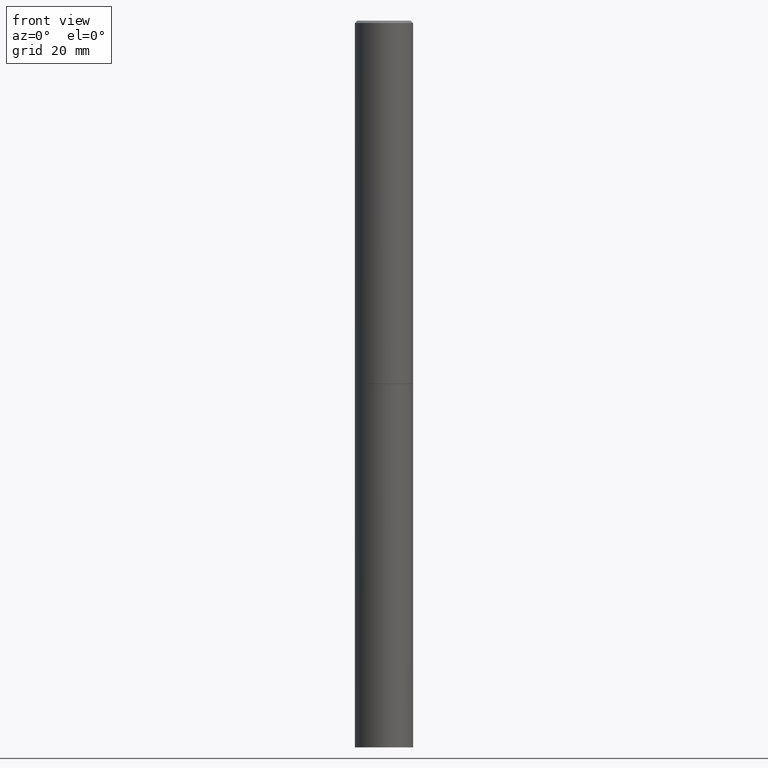
[diagram: clean part render]
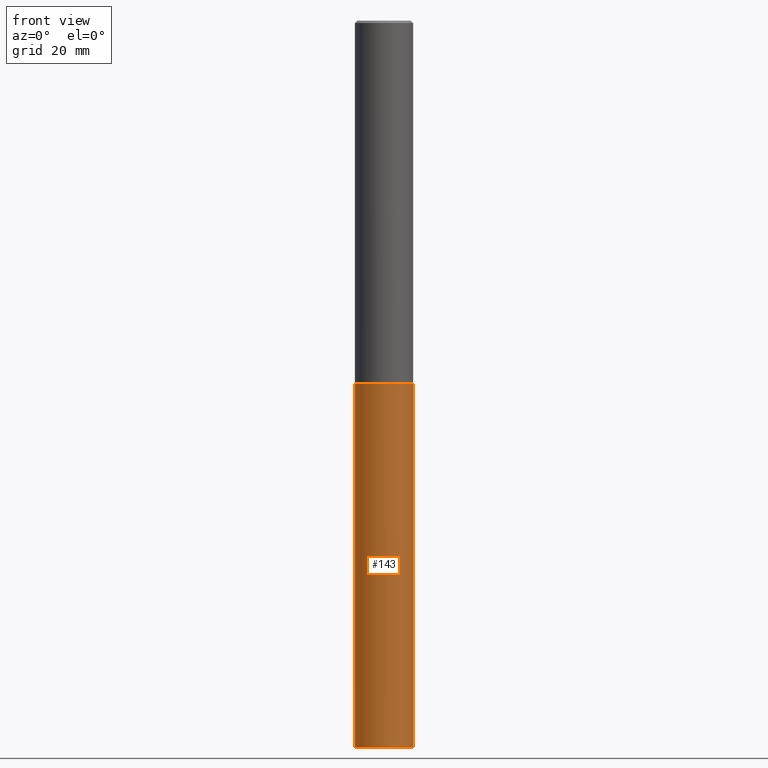
[diagram: same view with one face highlighted and labeled with its STEP entity id]
A machine part, front view. The second image highlights one B-rep face of the part: STEP entity #143.
In plain terms, the highlighted cylindrical surface (edge-blend (fillet) strip) has radius 5.9995 mm, axis along (-0, 0, 1).
Its self-contained STEP definition (entity closure, byte-faithful):
#27 = ORIENTED_EDGE ( 'NONE', *, *, #339, .T. ) ;
#34 = AXIS2_PLACEMENT_3D ( 'NONE', #237, #92, #211 ) ;
#39 = LINE ( 'NONE', #122, #245 ) ;
#41 = DIRECTION ( 'NONE',  ( 1.000000000000000000, -6.982962677686266711E-15, 4.876176775795936353E-29 ) ) ;
#44 = CARTESIAN_POINT ( 'NONE',  ( -0.2361999999999999933, -1.378581805600481631E-14, -5.905499999999999972 ) ) ;
#47 = LINE ( 'NONE', #189, #54 ) ;
#54 = VECTOR ( 'NONE', #276, 39.37007874015748143 ) ;
#72 = FACE_OUTER_BOUND ( 'NONE', #191, .T. ) ;
#88 = VERTEX_POINT ( 'NONE', #118 ) ;
#92 = DIRECTION ( 'NONE',  ( -2.445468806185136597E-29, 3.491481338843145583E-15, 1.000000000000000000 ) ) ;
#93 = AXIS2_PLACEMENT_3D ( 'NONE', #184, #97, #214 ) ;
#94 = ORIENTED_EDGE ( 'NONE', *, *, #281, .T. ) ;
#97 = DIRECTION ( 'NONE',  ( -2.445468806185136597E-29, 3.491481338843145583E-15, 1.000000000000000000 ) ) ;
#105 = CIRCLE ( 'NONE', #93, 0.2361999999999999933 ) ;
#118 = CARTESIAN_POINT ( 'NONE',  ( -0.2361999999999999933, -1.378581805600481631E-14, -2.952700000000000102 ) ) ;
#122 = CARTESIAN_POINT ( 'NONE',  ( -0.2361999999999999933, 1.678301941865356591E-15, -1.161852468318208757E-29 ) ) ;
#126 = DIRECTION ( 'NONE',  ( -2.445468806185136877E-29, 3.491481338843145188E-15, 1.000000000000000000 ) ) ;
#132 = CIRCLE ( 'NONE', #34, 0.2361999999999999933 ) ;
#143 = ADVANCED_FACE ( 'NONE', ( #72 ), #294, .T. ) ;
#156 = DIRECTION ( 'NONE',  ( -2.445468806185136597E-29, 3.491481338843145583E-15, 1.000000000000000000 ) ) ;
#179 = VERTEX_POINT ( 'NONE', #188 ) ;
#184 = CARTESIAN_POINT ( 'NONE',  ( 7.220735744022852519E-29, -1.030929694920215502E-14, -2.952700000000000102 ) ) ;
#188 = CARTESIAN_POINT ( 'NONE',  ( 0.2361999999999999933, -1.195867273367164996E-14, -2.952700000000000102 ) ) ;
#189 = CARTESIAN_POINT ( 'NONE',  ( 0.2361999999999999933, -1.649375784469496131E-15, 1.151752954443000088E-29 ) ) ;
#191 = EDGE_LOOP ( 'NONE', ( #286, #94, #27, #248 ) ) ;
#198 = AXIS2_PLACEMENT_3D ( 'NONE', #270, #156, #41 ) ;
#206 = VERTEX_POINT ( 'NONE', #44 ) ;
#211 = DIRECTION ( 'NONE',  ( 1.000000000000000000, -6.982962677686273021E-15, 0.000000000000000000 ) ) ;
#214 = DIRECTION ( 'NONE',  ( 1.000000000000000000, -6.982962677686265133E-15, 0.000000000000000000 ) ) ;
#218 = EDGE_CURVE ( 'NONE', #206, #88, #39, .T. ) ;
#231 = EDGE_CURVE ( 'NONE', #88, #179, #105, .T. ) ;
#237 = CARTESIAN_POINT ( 'NONE',  ( 1.444171603492632270E-28, -2.061894304653819197E-14, -5.905499999999999972 ) ) ;
#245 = VECTOR ( 'NONE', #126, 39.37007874015748143 ) ;
#248 = ORIENTED_EDGE ( 'NONE', *, *, #231, .F. ) ;
#270 = CARTESIAN_POINT ( 'NONE',  ( 0.000000000000000000, 0.000000000000000000, 0.000000000000000000 ) ) ;
#276 = DIRECTION ( 'NONE',  ( -2.445468806185136877E-29, 3.491481338843145188E-15, 1.000000000000000000 ) ) ;
#281 = EDGE_CURVE ( 'NONE', #206, #298, #132, .T. ) ;
#286 = ORIENTED_EDGE ( 'NONE', *, *, #218, .F. ) ;
#294 = CYLINDRICAL_SURFACE ( 'NONE', #198, 0.2361999999999999933 ) ;
#298 = VERTEX_POINT ( 'NONE', #326 ) ;
#326 = CARTESIAN_POINT ( 'NONE',  ( 0.2361999999999999933, -2.226831883100769165E-14, -5.905499999999999972 ) ) ;
#339 = EDGE_CURVE ( 'NONE', #298, #179, #47, .T. ) ;